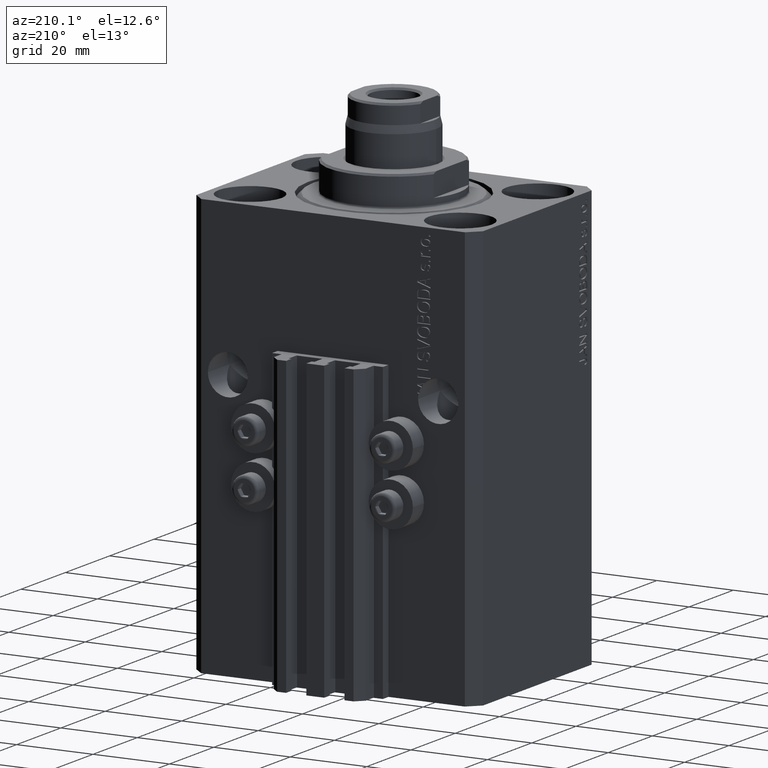
[diagram: clean part render]
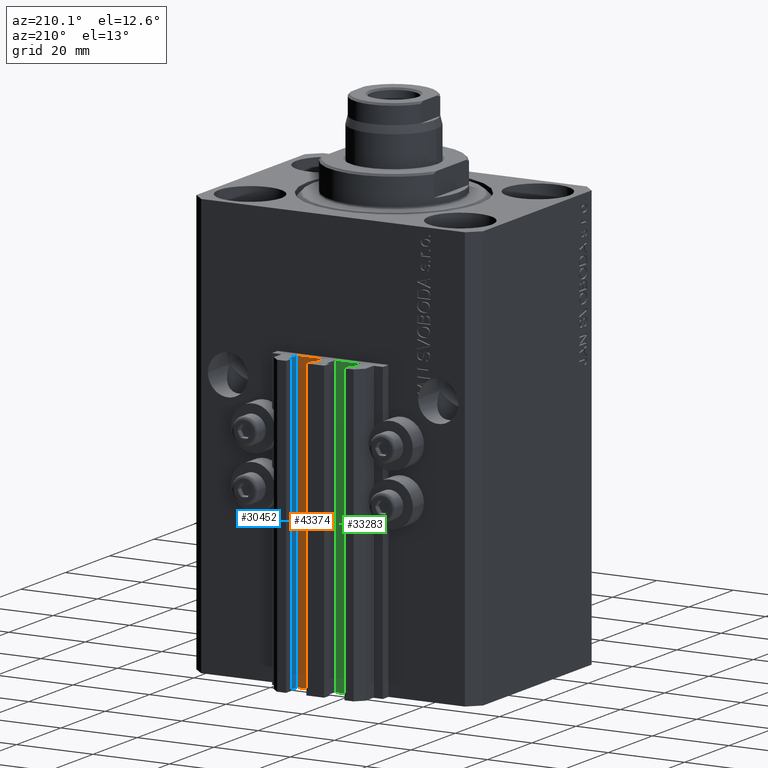
[diagram: same view with three faces highlighted in distinct colors, each labeled with its STEP entity id]
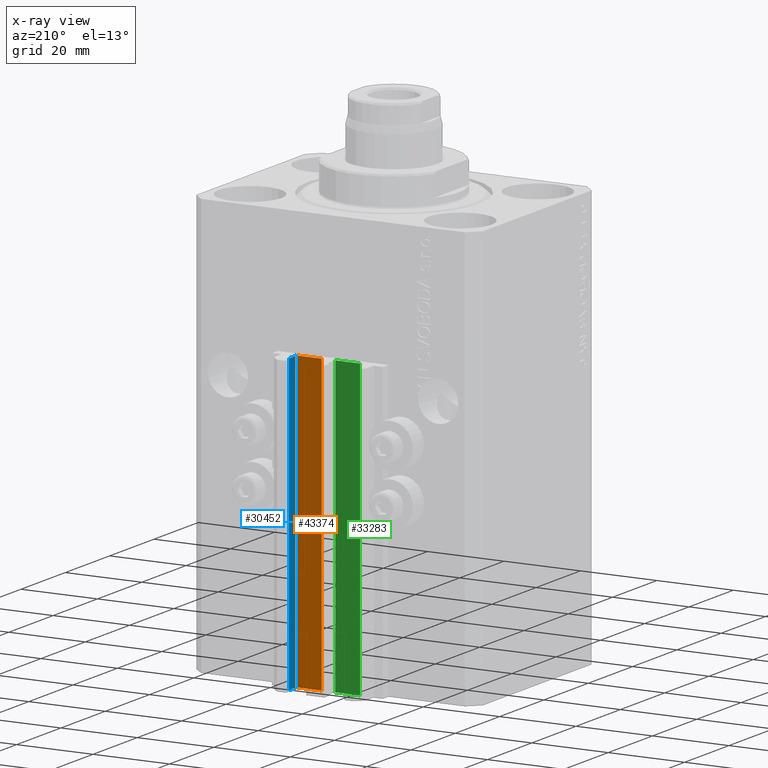
[diagram: x-ray of the same camera — body ghosted, the three highlighted faces saturated]
A machine part, auxiliary view with three faces highlighted in distinct colors.
The next image is the same camera in x-ray (body ghosted, the three faces saturated) — at least one of them is partly hidden behind the body in this view.
Their STEP definitions:

[orange] entity #43374 — the highlighted planar face has unit normal (-0, 1, 0).
#754 = LINE ( 'NONE', #3623, #41237 ) ;
#1394 = VERTEX_POINT ( 'NONE', #35644 ) ;
#1940 = CARTESIAN_POINT ( 'NONE',  ( 8.199999999999999289, 29.50000000000000711, -110.0000000000000000 ) ) ;
#2443 = VECTOR ( 'NONE', #16579, 1000.000000000000000 ) ;
#3623 = CARTESIAN_POINT ( 'NONE',  ( 8.199999999999999289, 29.50000000000000711, -33.00000000000000000 ) ) ;
#4188 = PLANE ( 'NONE',  #43699 ) ;
#7044 = FACE_OUTER_BOUND ( 'NONE', #42214, .T. ) ;
#9041 = ORIENTED_EDGE ( 'NONE', *, *, #26560, .T. ) ;
#9655 = DIRECTION ( 'NONE',  ( 0.000000000000000000, 0.000000000000000000, 1.000000000000000000 ) ) ;
#10455 = VERTEX_POINT ( 'NONE', #38808 ) ;
#10602 = ORIENTED_EDGE ( 'NONE', *, *, #37682, .T. ) ;
#12117 = LINE ( 'NONE', #1940, #20103 ) ;
#15083 = DIRECTION ( 'NONE',  ( -1.000000000000000000, -1.084202172485504828E-15, 0.000000000000000000 ) ) ;
#16579 = DIRECTION ( 'NONE',  ( 0.000000000000000000, 0.000000000000000000, 1.000000000000000000 ) ) ;
#17217 = VECTOR ( 'NONE', #9655, 1000.000000000000000 ) ;
#18644 = CARTESIAN_POINT ( 'NONE',  ( 8.199999999999999289, 29.50000000000000711, -110.0000000000000000 ) ) ;
#18726 = CARTESIAN_POINT ( 'NONE',  ( 1.800000000000000933, 29.50000000000000000, -33.00000000000000000 ) ) ;
#20103 = VECTOR ( 'NONE', #44542, 1000.000000000000000 ) ;
#21001 = CARTESIAN_POINT ( 'NONE',  ( 8.199999999999999289, 29.50000000000000711, -110.0000000000000000 ) ) ;
#22152 = ORIENTED_EDGE ( 'NONE', *, *, #45391, .F. ) ;
#26560 = EDGE_CURVE ( 'NONE', #10455, #33048, #45670, .T. ) ;
#27669 = LINE ( 'NONE', #21001, #17217 ) ;
#27725 = CARTESIAN_POINT ( 'NONE',  ( 1.800000000000000933, 29.50000000000000000, -110.0000000000000000 ) ) ;
#33048 = VERTEX_POINT ( 'NONE', #18726 ) ;
#33080 = DIRECTION ( 'NONE',  ( -1.084202172485504828E-15, 1.000000000000000000, 0.000000000000000000 ) ) ;
#33198 = ORIENTED_EDGE ( 'NONE', *, *, #37552, .F. ) ;
#35644 = CARTESIAN_POINT ( 'NONE',  ( 8.199999999999999289, 29.50000000000000711, -33.00000000000000000 ) ) ;
#37552 = EDGE_CURVE ( 'NONE', #1394, #33048, #754, .T. ) ;
#37682 = EDGE_CURVE ( 'NONE', #43455, #10455, #12117, .T. ) ;
#38808 = CARTESIAN_POINT ( 'NONE',  ( 1.800000000000000933, 29.50000000000000000, -110.0000000000000000 ) ) ;
#39617 = DIRECTION ( 'NONE',  ( -1.000000000000000000, -1.084202172485504828E-15, 0.000000000000000000 ) ) ;
#40633 = CARTESIAN_POINT ( 'NONE',  ( 8.199999999999999289, 29.50000000000000711, -110.0000000000000000 ) ) ;
#41237 = VECTOR ( 'NONE', #39617, 1000.000000000000000 ) ;
#42214 = EDGE_LOOP ( 'NONE', ( #33198, #22152, #10602, #9041 ) ) ;
#43374 = ADVANCED_FACE ( 'NONE', ( #7044 ), #4188, .T. ) ;
#43455 = VERTEX_POINT ( 'NONE', #40633 ) ;
#43699 = AXIS2_PLACEMENT_3D ( 'NONE', #18644, #33080, #15083 ) ;
#44542 = DIRECTION ( 'NONE',  ( -1.000000000000000000, -1.084202172485504828E-15, 0.000000000000000000 ) ) ;
#45391 = EDGE_CURVE ( 'NONE', #43455, #1394, #27669, .T. ) ;
#45670 = LINE ( 'NONE', #27725, #2443 ) ;

[blue] entity #30452 — the highlighted planar face has unit normal (-1, 0, 0).
#1273 = VECTOR ( 'NONE', #46012, 1000.000000000000000 ) ;
#7086 = EDGE_CURVE ( 'NONE', #31518, #23214, #11687, .T. ) ;
#8218 = DIRECTION ( 'NONE',  ( -5.421010862427496532E-16, -1.000000000000000000, 0.000000000000000000 ) ) ;
#10750 = ORIENTED_EDGE ( 'NONE', *, *, #36969, .F. ) ;
#10990 = DIRECTION ( 'NONE',  ( -5.421010862427496532E-16, -1.000000000000000000, 0.000000000000000000 ) ) ;
#11687 = LINE ( 'NONE', #15939, #27519 ) ;
#12892 = LINE ( 'NONE', #41763, #1273 ) ;
#14768 = CARTESIAN_POINT ( 'NONE',  ( 8.400000000000000355, 32.90000000000001990, -110.0000000000000000 ) ) ;
#15001 = LINE ( 'NONE', #14768, #28524 ) ;
#15939 = CARTESIAN_POINT ( 'NONE',  ( 8.399999999999998579, 32.90000000000001990, -110.0000000000000000 ) ) ;
#18014 = EDGE_CURVE ( 'NONE', #31518, #38339, #15001, .T. ) ;
#18831 = DIRECTION ( 'NONE',  ( -1.000000000000000000, 5.421010862427496532E-16, 0.000000000000000000 ) ) ;
#18870 = LINE ( 'NONE', #43084, #45020 ) ;
#19760 = CARTESIAN_POINT ( 'NONE',  ( 8.399999999999998579, 32.90000000000001990, -110.0000000000000000 ) ) ;
#21139 = CARTESIAN_POINT ( 'NONE',  ( 8.399999999999998579, 32.90000000000001990, -33.00000000000000000 ) ) ;
#21701 = CARTESIAN_POINT ( 'NONE',  ( 8.400000000000000355, 32.90000000000001990, -110.0000000000000000 ) ) ;
#22237 = AXIS2_PLACEMENT_3D ( 'NONE', #21701, #18831, #33040 ) ;
#22390 = FACE_OUTER_BOUND ( 'NONE', #33554, .T. ) ;
#23214 = VERTEX_POINT ( 'NONE', #21139 ) ;
#26046 = ORIENTED_EDGE ( 'NONE', *, *, #44903, .T. ) ;
#26949 = CARTESIAN_POINT ( 'NONE',  ( 8.400000000000000355, 29.70000000000000284, -110.0000000000000000 ) ) ;
#27519 = VECTOR ( 'NONE', #44805, 1000.000000000000000 ) ;
#28524 = VECTOR ( 'NONE', #10990, 1000.000000000000000 ) ;
#29150 = ORIENTED_EDGE ( 'NONE', *, *, #7086, .F. ) ;
#30452 = ADVANCED_FACE ( 'NONE', ( #22390 ), #32577, .T. ) ;
#31518 = VERTEX_POINT ( 'NONE', #19760 ) ;
#31915 = CARTESIAN_POINT ( 'NONE',  ( 8.400000000000000355, 29.70000000000000284, -33.00000000000000000 ) ) ;
#32577 = PLANE ( 'NONE',  #22237 ) ;
#33040 = DIRECTION ( 'NONE',  ( -5.421010862427496532E-16, -1.000000000000000000, 0.000000000000000000 ) ) ;
#33554 = EDGE_LOOP ( 'NONE', ( #10750, #29150, #39148, #26046 ) ) ;
#36969 = EDGE_CURVE ( 'NONE', #23214, #43173, #18870, .T. ) ;
#38339 = VERTEX_POINT ( 'NONE', #26949 ) ;
#39148 = ORIENTED_EDGE ( 'NONE', *, *, #18014, .T. ) ;
#41763 = CARTESIAN_POINT ( 'NONE',  ( 8.400000000000000355, 29.70000000000000284, -110.0000000000000000 ) ) ;
#43084 = CARTESIAN_POINT ( 'NONE',  ( 8.400000000000000355, 32.90000000000001990, -33.00000000000000000 ) ) ;
#43173 = VERTEX_POINT ( 'NONE', #31915 ) ;
#44805 = DIRECTION ( 'NONE',  ( 0.000000000000000000, 0.000000000000000000, 1.000000000000000000 ) ) ;
#44903 = EDGE_CURVE ( 'NONE', #38339, #43173, #12892, .T. ) ;
#45020 = VECTOR ( 'NONE', #8218, 1000.000000000000000 ) ;
#46012 = DIRECTION ( 'NONE',  ( 0.000000000000000000, 0.000000000000000000, 1.000000000000000000 ) ) ;

[green] entity #33283 — the highlighted planar face has unit normal (0, 1, 0).
#563 = ORIENTED_EDGE ( 'NONE', *, *, #25443, .F. ) ;
#786 = CARTESIAN_POINT ( 'NONE',  ( -1.800000000000000933, 29.50000000000000355, -110.0000000000000000 ) ) ;
#1293 = PLANE ( 'NONE',  #24512 ) ;
#4580 = CARTESIAN_POINT ( 'NONE',  ( -8.199999999999997513, 29.50000000000000355, -33.00000000000000000 ) ) ;
#4610 = DIRECTION ( 'NONE',  ( 0.000000000000000000, 0.000000000000000000, 1.000000000000000000 ) ) ;
#6212 = VECTOR ( 'NONE', #38870, 1000.000000000000000 ) ;
#6260 = CARTESIAN_POINT ( 'NONE',  ( -1.800000000000000933, 29.50000000000000355, -110.0000000000000000 ) ) ;
#8492 = VECTOR ( 'NONE', #14702, 1000.000000000000000 ) ;
#9931 = VERTEX_POINT ( 'NONE', #28571 ) ;
#11800 = VECTOR ( 'NONE', #19720, 1000.000000000000000 ) ;
#13005 = VERTEX_POINT ( 'NONE', #786 ) ;
#14702 = DIRECTION ( 'NONE',  ( -1.000000000000000000, 0.000000000000000000, 0.000000000000000000 ) ) ;
#15920 = CARTESIAN_POINT ( 'NONE',  ( -1.800000000000000933, 29.50000000000000355, -110.0000000000000000 ) ) ;
#17086 = LINE ( 'NONE', #34842, #6212 ) ;
#17379 = LINE ( 'NONE', #6260, #8492 ) ;
#17876 = EDGE_CURVE ( 'NONE', #9931, #35645, #42007, .T. ) ;
#18989 = CARTESIAN_POINT ( 'NONE',  ( -1.800000000000000933, 29.50000000000000355, -33.00000000000000000 ) ) ;
#19715 = EDGE_LOOP ( 'NONE', ( #563, #44315, #29280, #23262 ) ) ;
#19720 = DIRECTION ( 'NONE',  ( 0.000000000000000000, 0.000000000000000000, 1.000000000000000000 ) ) ;
#23262 = ORIENTED_EDGE ( 'NONE', *, *, #17876, .T. ) ;
#24512 = AXIS2_PLACEMENT_3D ( 'NONE', #40835, #26423, #4610 ) ;
#25333 = VERTEX_POINT ( 'NONE', #18989 ) ;
#25443 = EDGE_CURVE ( 'NONE', #25333, #35645, #17086, .T. ) ;
#26392 = EDGE_CURVE ( 'NONE', #13005, #9931, #17379, .T. ) ;
#26423 = DIRECTION ( 'NONE',  ( 0.000000000000000000, 1.000000000000000000, -0.000000000000000000 ) ) ;
#27368 = DIRECTION ( 'NONE',  ( 0.000000000000000000, 0.000000000000000000, 1.000000000000000000 ) ) ;
#28571 = CARTESIAN_POINT ( 'NONE',  ( -8.199999999999997513, 29.50000000000000355, -110.0000000000000000 ) ) ;
#29280 = ORIENTED_EDGE ( 'NONE', *, *, #26392, .T. ) ;
#33283 = ADVANCED_FACE ( 'NONE', ( #37772 ), #1293, .T. ) ;
#33678 = LINE ( 'NONE', #15920, #11800 ) ;
#34842 = CARTESIAN_POINT ( 'NONE',  ( -1.800000000000000933, 29.50000000000000355, -33.00000000000000000 ) ) ;
#35645 = VERTEX_POINT ( 'NONE', #4580 ) ;
#36804 = VECTOR ( 'NONE', #27368, 1000.000000000000000 ) ;
#37772 = FACE_OUTER_BOUND ( 'NONE', #19715, .T. ) ;
#38636 = EDGE_CURVE ( 'NONE', #13005, #25333, #33678, .T. ) ;
#38870 = DIRECTION ( 'NONE',  ( -1.000000000000000000, 0.000000000000000000, 0.000000000000000000 ) ) ;
#40835 = CARTESIAN_POINT ( 'NONE',  ( -1.800000000000000933, 29.50000000000000355, -110.0000000000000000 ) ) ;
#42007 = LINE ( 'NONE', #45791, #36804 ) ;
#44315 = ORIENTED_EDGE ( 'NONE', *, *, #38636, .F. ) ;
#45791 = CARTESIAN_POINT ( 'NONE',  ( -8.199999999999997513, 29.50000000000000355, -110.0000000000000000 ) ) ;